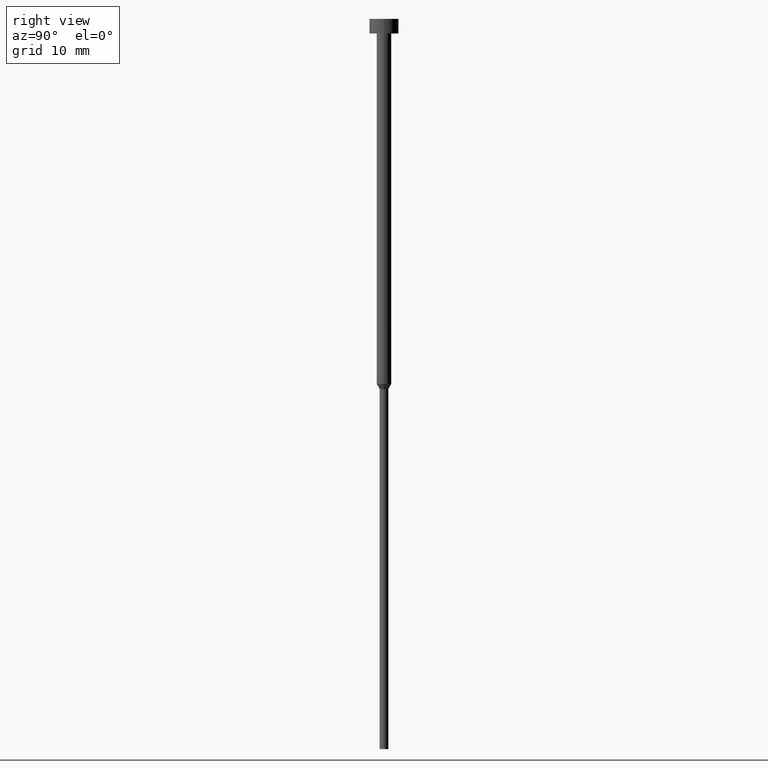
[diagram: clean part render]
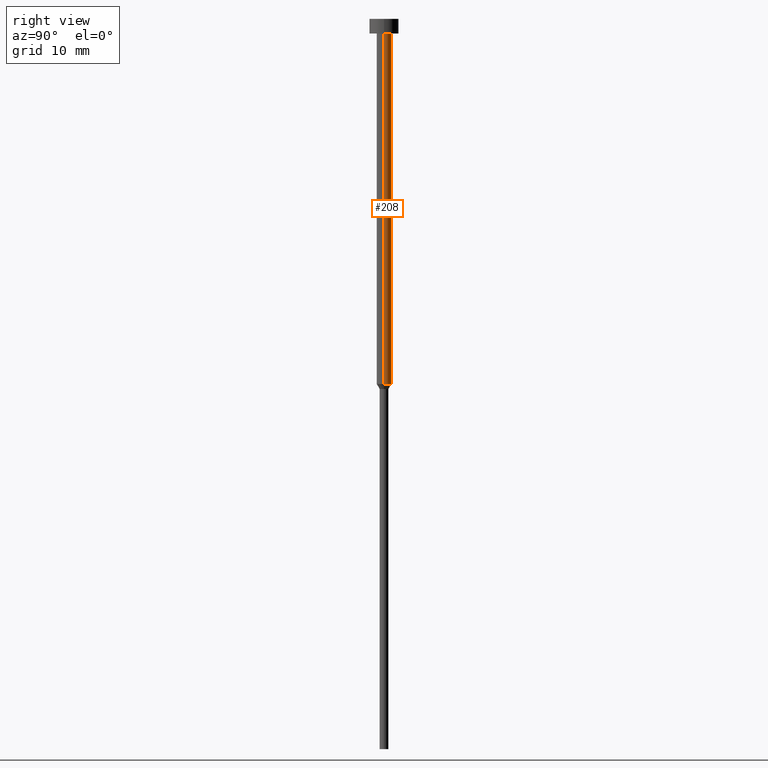
[diagram: same view with one face highlighted and labeled with its STEP entity id]
A machine part, right view. The second image highlights one B-rep face of the part: STEP entity #208.
In plain terms, the highlighted cylindrical surface (edge-blend (fillet) strip) has radius 1 mm, axis along (-0, -0, 1).
Its self-contained STEP definition (entity closure, byte-faithful):
#7 = CARTESIAN_POINT ( 'NONE',  ( 1.000000000000003109, 0.000000000000000000, -50.00000000000000000 ) ) ;
#19 = ORIENTED_EDGE ( 'NONE', *, *, #107, .F. ) ;
#29 = EDGE_CURVE ( 'NONE', #101, #201, #192, .T. ) ;
#38 = EDGE_LOOP ( 'NONE', ( #115, #73, #253, #19 ) ) ;
#58 = DIRECTION ( 'NONE',  ( -0.000000000000000000, -0.000000000000000000, 1.000000000000000000 ) ) ;
#73 = ORIENTED_EDGE ( 'NONE', *, *, #189, .T. ) ;
#91 = DIRECTION ( 'NONE',  ( -0.000000000000000000, -0.000000000000000000, 1.000000000000000000 ) ) ;
#101 = VERTEX_POINT ( 'NONE', #7 ) ;
#107 = EDGE_CURVE ( 'NONE', #101, #244, #292, .T. ) ;
#109 = CYLINDRICAL_SURFACE ( 'NONE', #262, 1.000000000000003331 ) ;
#115 = ORIENTED_EDGE ( 'NONE', *, *, #29, .T. ) ;
#119 = CARTESIAN_POINT ( 'NONE',  ( -1.000000000000003553, 1.224646799147357398E-16, -2.000000000000000444 ) ) ;
#135 = EDGE_CURVE ( 'NONE', #244, #171, #305, .T. ) ;
#142 = CARTESIAN_POINT ( 'NONE',  ( 1.000000000000003331, 0.000000000000000000, 0.000000000000000000 ) ) ;
#146 = DIRECTION ( 'NONE',  ( -0.000000000000000000, -0.000000000000000000, 1.000000000000000000 ) ) ;
#171 = VERTEX_POINT ( 'NONE', #119 ) ;
#186 = AXIS2_PLACEMENT_3D ( 'NONE', #302, #306, #235 ) ;
#189 = EDGE_CURVE ( 'NONE', #201, #171, #257, .T. ) ;
#192 = CIRCLE ( 'NONE', #186, 1.000000000000003109 ) ;
#200 = VECTOR ( 'NONE', #91, 1000.000000000000000 ) ;
#201 = VERTEX_POINT ( 'NONE', #349 ) ;
#202 = FACE_OUTER_BOUND ( 'NONE', #38, .T. ) ;
#208 = ADVANCED_FACE ( 'NONE', ( #202 ), #109, .T. ) ;
#211 = VECTOR ( 'NONE', #225, 1000.000000000000000 ) ;
#216 = DIRECTION ( 'NONE',  ( 1.000000000000000000, 0.000000000000000000, 0.000000000000000000 ) ) ;
#222 = CARTESIAN_POINT ( 'NONE',  ( 1.000000000000003553, 0.000000000000000000, -2.000000000000000444 ) ) ;
#225 = DIRECTION ( 'NONE',  ( -0.000000000000000000, -0.000000000000000000, 1.000000000000000000 ) ) ;
#235 = DIRECTION ( 'NONE',  ( 1.000000000000000000, 0.000000000000000000, 0.000000000000000000 ) ) ;
#244 = VERTEX_POINT ( 'NONE', #222 ) ;
#253 = ORIENTED_EDGE ( 'NONE', *, *, #135, .F. ) ;
#257 = LINE ( 'NONE', #342, #200 ) ;
#262 = AXIS2_PLACEMENT_3D ( 'NONE', #333, #58, #216 ) ;
#281 = AXIS2_PLACEMENT_3D ( 'NONE', #295, #146, #317 ) ;
#292 = LINE ( 'NONE', #142, #211 ) ;
#295 = CARTESIAN_POINT ( 'NONE',  ( 0.000000000000000000, 0.000000000000000000, -2.000000000000000444 ) ) ;
#302 = CARTESIAN_POINT ( 'NONE',  ( 0.000000000000000000, 0.000000000000000000, -50.00000000000000000 ) ) ;
#305 = CIRCLE ( 'NONE', #281, 1.000000000000003553 ) ;
#306 = DIRECTION ( 'NONE',  ( -0.000000000000000000, -0.000000000000000000, 1.000000000000000000 ) ) ;
#317 = DIRECTION ( 'NONE',  ( 1.000000000000000000, 0.000000000000000000, 0.000000000000000000 ) ) ;
#333 = CARTESIAN_POINT ( 'NONE',  ( 0.000000000000000000, 0.000000000000000000, 0.000000000000000000 ) ) ;
#342 = CARTESIAN_POINT ( 'NONE',  ( -1.000000000000003331, 1.224646799147357151E-16, 0.000000000000000000 ) ) ;
#349 = CARTESIAN_POINT ( 'NONE',  ( -1.000000000000003109, 1.224646799147356905E-16, -50.00000000000000000 ) ) ;